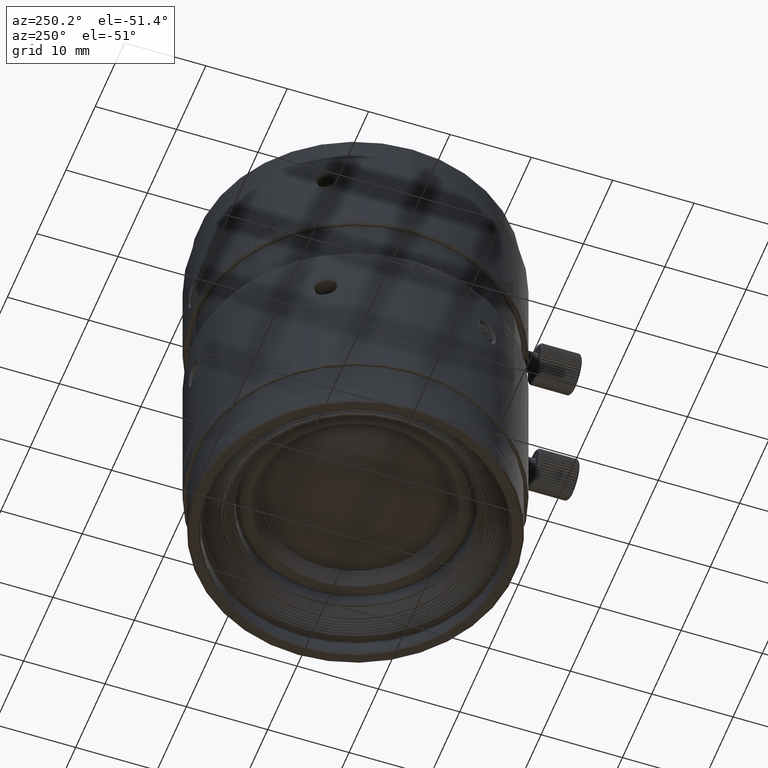
[diagram: clean part render]
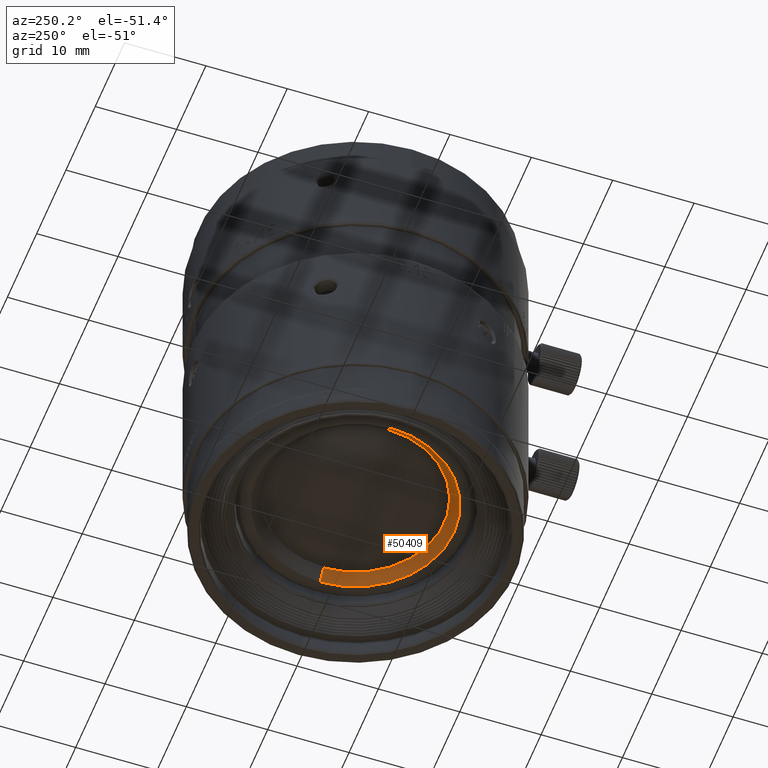
[diagram: same view with one face highlighted and labeled with its STEP entity id]
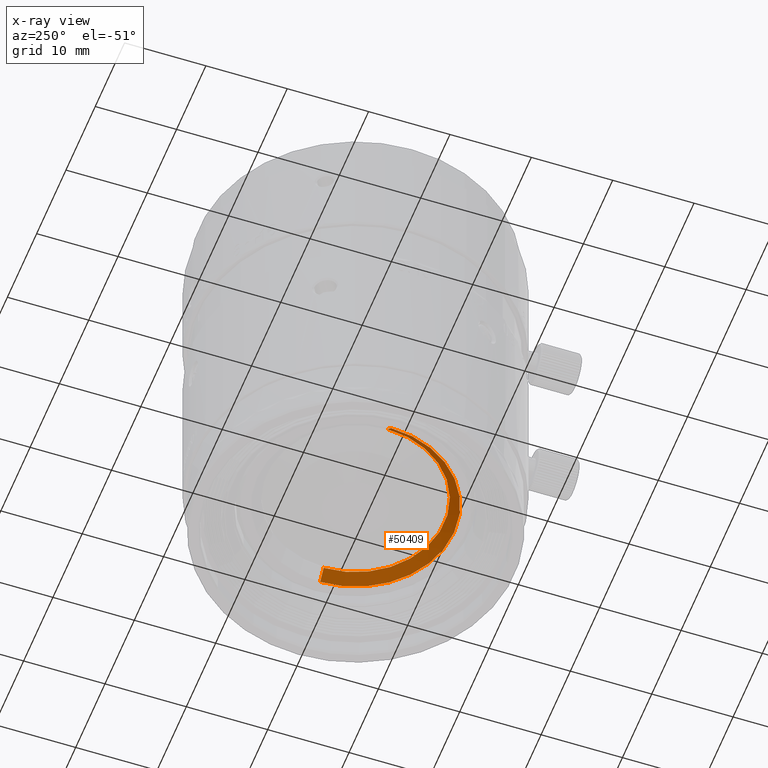
[diagram: x-ray of the same camera — body ghosted, the highlighted face saturated]
A machine part, auxiliary view. The second image highlights one B-rep face of the part: STEP entity #50409.
The next image is the same camera in x-ray: the body ghosted, the highlighted face saturated — about 0% of this face is hidden behind the body in this view.
In plain terms, the highlighted conical surface has half-angle 45 deg.
Its self-contained STEP definition (entity closure, byte-faithful):
#600 = EDGE_CURVE ( 'NONE', #35370, #7365, #5920, .T. ) ;
#675 = DIRECTION ( 'NONE',  ( -1.000000000000000000, 0.000000000000000000, 0.000000000000000000 ) ) ;
#1355 = AXIS2_PLACEMENT_3D ( 'NONE', #32147, #58172, #31334 ) ;
#4990 = ORIENTED_EDGE ( 'NONE', *, *, #33270, .T. ) ;
#5920 = LINE ( 'NONE', #57089, #29551 ) ;
#7365 = VERTEX_POINT ( 'NONE', #63045 ) ;
#9417 = EDGE_LOOP ( 'NONE', ( #9484, #57161, #35690, #4990 ) ) ;
#9484 = ORIENTED_EDGE ( 'NONE', *, *, #60594, .T. ) ;
#10348 = AXIS2_PLACEMENT_3D ( 'NONE', #19458, #46284, #52177 ) ;
#13988 = FACE_OUTER_BOUND ( 'NONE', #9417, .T. ) ;
#16079 = CIRCLE ( 'NONE', #1355, 12.09999999999999964 ) ;
#18909 = DIRECTION ( 'NONE',  ( -0.7071067811865474617, 0.000000000000000000, -0.7071067811865474617 ) ) ;
#19458 = CARTESIAN_POINT ( 'NONE',  ( 0.000000000000000000, 0.000000000000000000, 1.600000000000000089 ) ) ;
#21224 = EDGE_CURVE ( 'NONE', #7365, #21518, #16079, .T. ) ;
#21518 = VERTEX_POINT ( 'NONE', #21545 ) ;
#21545 = CARTESIAN_POINT ( 'NONE',  ( 12.09999999999999964, 0.000000000000000000, 1.000000000000000000 ) ) ;
#29407 = AXIS2_PLACEMENT_3D ( 'NONE', #52689, #58140, #675 ) ;
#29551 = VECTOR ( 'NONE', #18909, 1000.000000000000114 ) ;
#31334 = DIRECTION ( 'NONE',  ( -1.000000000000000000, 0.000000000000000000, 0.000000000000000000 ) ) ;
#32147 = CARTESIAN_POINT ( 'NONE',  ( 0.000000000000000000, 0.000000000000000000, 1.000000000000000000 ) ) ;
#33270 = EDGE_CURVE ( 'NONE', #35370, #65915, #79053, .T. ) ;
#35370 = VERTEX_POINT ( 'NONE', #71937 ) ;
#35690 = ORIENTED_EDGE ( 'NONE', *, *, #600, .F. ) ;
#37751 = CARTESIAN_POINT ( 'NONE',  ( 10.90000000000000036, 0.000000000000000000, 2.200000000000000178 ) ) ;
#38703 = CARTESIAN_POINT ( 'NONE',  ( 10.90000000000000036, 0.000000000000000000, 2.200000000000000178 ) ) ;
#46284 = DIRECTION ( 'NONE',  ( 0.000000000000000000, 0.000000000000000000, -1.000000000000000000 ) ) ;
#46525 = CONICAL_SURFACE ( 'NONE', #10348, 11.50000000000000000, 0.7853981633972997312 ) ;
#50409 = ADVANCED_FACE ( 'NONE', ( #13988 ), #46525, .F. ) ;
#52177 = DIRECTION ( 'NONE',  ( -1.000000000000000000, 0.000000000000000000, 0.000000000000000000 ) ) ;
#52689 = CARTESIAN_POINT ( 'NONE',  ( 0.000000000000000000, 0.000000000000000000, 2.200000000000000178 ) ) ;
#56796 = LINE ( 'NONE', #38703, #68632 ) ;
#57089 = CARTESIAN_POINT ( 'NONE',  ( -10.90000000000000036, 0.000000000000000000, 2.200000000000000178 ) ) ;
#57161 = ORIENTED_EDGE ( 'NONE', *, *, #21224, .F. ) ;
#58140 = DIRECTION ( 'NONE',  ( 0.000000000000000000, 0.000000000000000000, 1.000000000000000000 ) ) ;
#58172 = DIRECTION ( 'NONE',  ( 0.000000000000000000, 0.000000000000000000, 1.000000000000000000 ) ) ;
#60594 = EDGE_CURVE ( 'NONE', #65915, #21518, #56796, .T. ) ;
#63045 = CARTESIAN_POINT ( 'NONE',  ( -12.09999999999999964, 0.000000000000000000, 1.000000000000000000 ) ) ;
#65915 = VERTEX_POINT ( 'NONE', #37751 ) ;
#68632 = VECTOR ( 'NONE', #76113, 1000.000000000000114 ) ;
#71937 = CARTESIAN_POINT ( 'NONE',  ( -10.90000000000000036, 0.000000000000000000, 2.200000000000000178 ) ) ;
#76113 = DIRECTION ( 'NONE',  ( 0.7071067811865474617, 0.000000000000000000, -0.7071067811865474617 ) ) ;
#79053 = CIRCLE ( 'NONE', #29407, 10.90000000000000036 ) ;